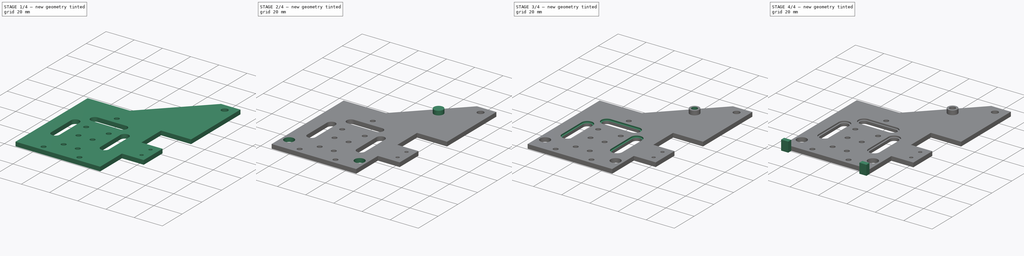
[diagram: build sequence overview — one tinted view per stage of 4, left to right]
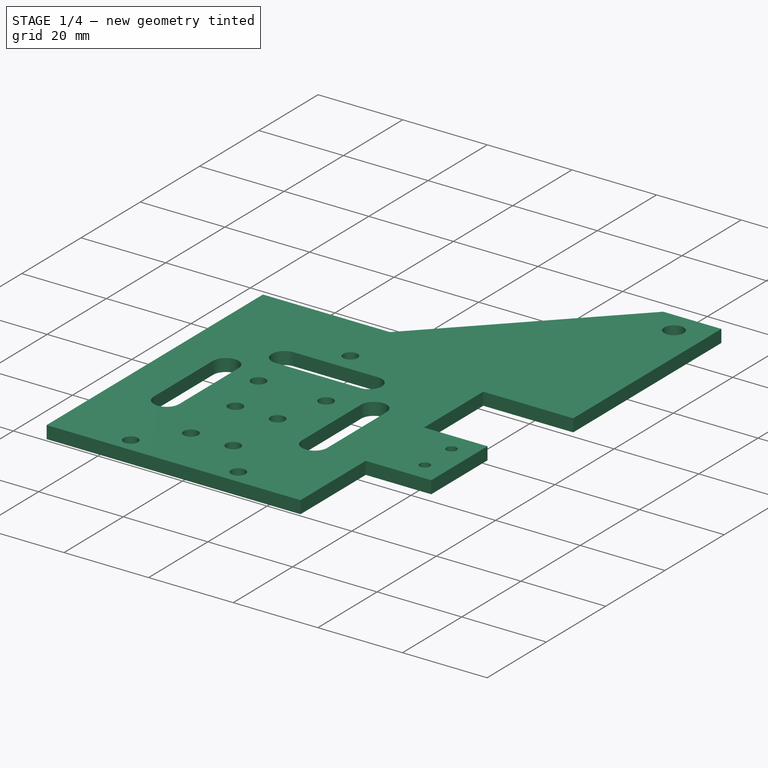
[diagram: stage 1 of 4 — iso view after this stage's code; geometry added in this stage tinted green]
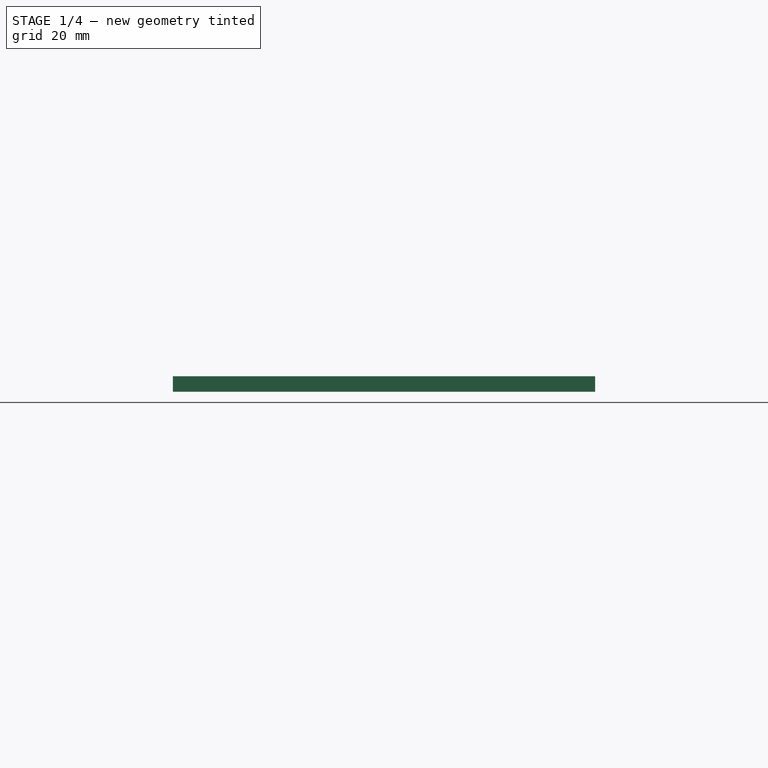
[diagram: stage 1 of 4 — front view after this stage's code; geometry added in this stage tinted green]
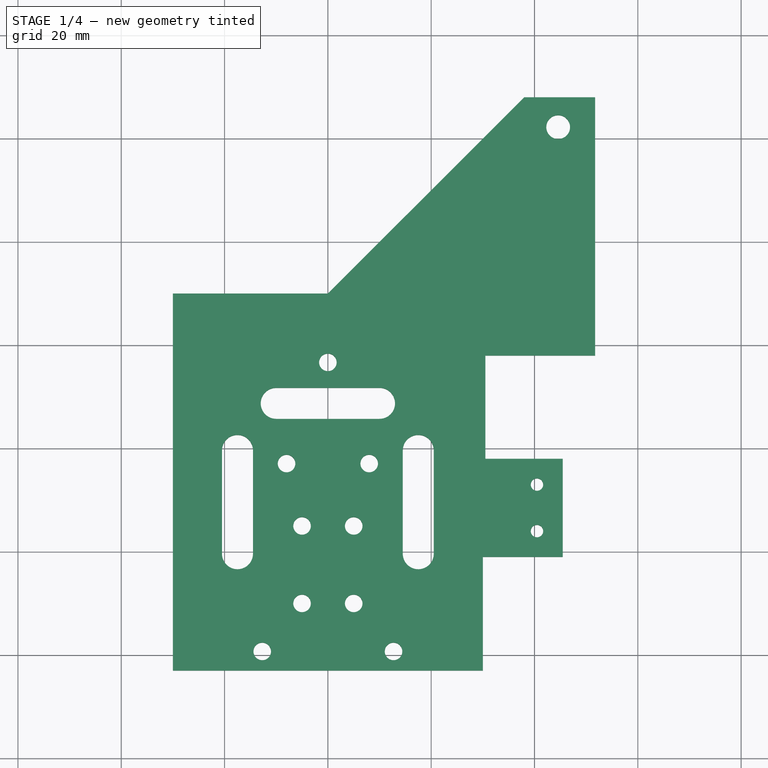
[diagram: stage 1 of 4 — top view after this stage's code; geometry added in this stage tinted green]
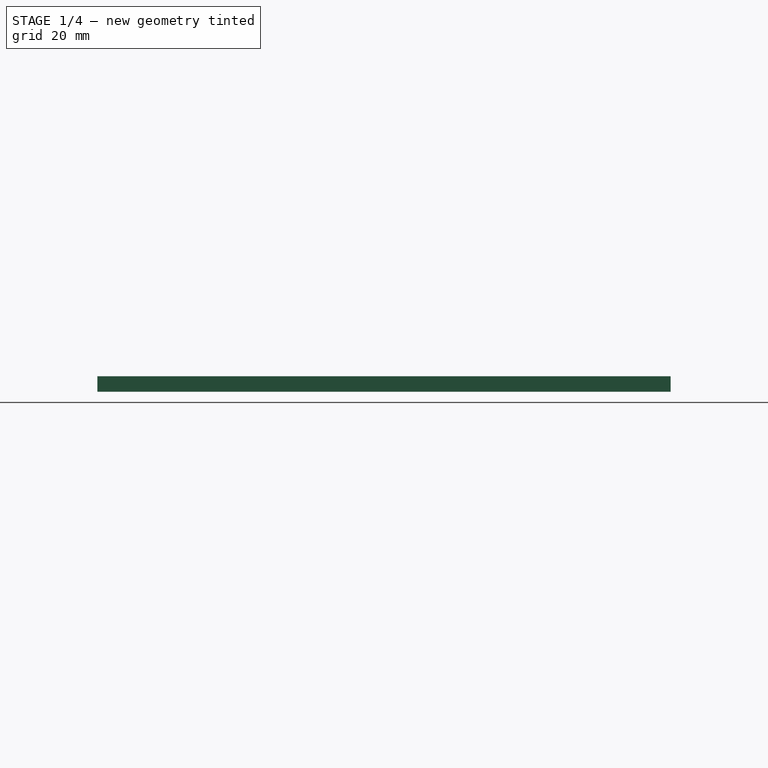
[diagram: stage 1 of 4 — right view after this stage's code; geometry added in this stage tinted green]
FCSTD DOCUMENT  (FreeCAD 0.18.4R)
Label: main_head_v1.01
License: All rights reserved
LicenseURL: http://en.wikipedia.org/wiki/All_rights_reserved
objects: Sketcher::SketchObject×10, PartDesign::Pocket×5, PartDesign::Pad×4, PartDesign::Body×1
note: 29 computed .brp shape members not serialized (recipe doc carries the construction recipe); baked Part::Feature solids carry a one-line shape summary decoded from their .brp

FEATURE [Sketcher::SketchObject] Sketch
  MapMode = 5
  Support = -> [XY_Plane]
  sketch-geometry (36):
    g0: LineSegment StartX=30 StartY=-63 StartZ=0 EndX=-30 EndY=-63 EndZ=0
    g1: LineSegment StartX=-30 StartY=-63 StartZ=0 EndX=-30 EndY=10 EndZ=0
    g2: LineSegment StartX=-30 StartY=10 StartZ=0 EndX=0 EndY=10 EndZ=0
    g3: LineSegment StartX=0 StartY=10 StartZ=0 EndX=38 EndY=48 EndZ=0
    g4: LineSegment StartX=38 StartY=48 StartZ=0 EndX=51.73 EndY=48 EndZ=0
    g5: LineSegment StartX=51.73 StartY=48 StartZ=0 EndX=51.73 EndY=-2 EndZ=0
    g6: LineSegment StartX=30.48 StartY=-2 StartZ=0 EndX=30.48 EndY=-22 EndZ=0
    g7: LineSegment StartX=30.48 StartY=-22 StartZ=0 EndX=45.48 EndY=-22 EndZ=0
    g8: LineSegment StartX=45.48 StartY=-22 StartZ=0 EndX=45.48 EndY=-41 EndZ=0
    g9: LineSegment StartX=45.48 StartY=-41 StartZ=0 EndX=30 EndY=-41 EndZ=0
    g10: LineSegment StartX=30 StartY=-41 StartZ=0 EndX=30 EndY=-63 EndZ=0
    g11: LineSegment StartX=30.48 StartY=-2 StartZ=0 EndX=51.73 EndY=-2 EndZ=0
    g12: Circle CenterX=44.585 CenterY=42.218 CenterZ=0 NormalX=0 NormalY=0 NormalZ=1 AngleXU=0 Radius=2.3
    g13: Circle CenterX=-12.71 CenterY=-59.3 CenterZ=0 NormalX=0 NormalY=0 NormalZ=1 AngleXU=0 Radius=1.7
    g14: Circle CenterX=12.71 CenterY=-59.3 CenterZ=0 NormalX=0 NormalY=0 NormalZ=1 AngleXU=0 Radius=1.7
    g15: ArcOfCircle CenterX=-17.5 CenterY=-40.386 CenterZ=0 NormalX=0 NormalY=0 NormalZ=1 AngleXU=0 Radius=3 StartAngle=3.14159 EndAngle=6.28319
    g16: ArcOfCircle CenterX=-17.5 CenterY=-20.386 CenterZ=0 NormalX=0 NormalY=0 NormalZ=1 AngleXU=0 Radius=3 StartAngle=5e-16 EndAngle=3.14159
    g17: LineSegment StartX=-14.5 StartY=-40.386 StartZ=0 EndX=-14.5 EndY=-20.386 EndZ=0
    g18: LineSegment StartX=-20.5 StartY=-40.386 StartZ=0 EndX=-20.5 EndY=-20.386 EndZ=0
    g19: ArcOfCircle CenterX=17.5 CenterY=-40.386 CenterZ=0 NormalX=0 NormalY=0 NormalZ=1 AngleXU=0 Radius=3 StartAngle=3.14159 EndAngle=6.28319
    g20: ArcOfCircle CenterX=17.5 CenterY=-20.386 CenterZ=0 NormalX=0 NormalY=0 NormalZ=1 AngleXU=0 Radius=3 StartAngle=6e-16 EndAngle=3.14159
    g21: LineSegment StartX=20.5 StartY=-40.386 StartZ=0 EndX=20.5 EndY=-20.386 EndZ=0
    g22: LineSegment StartX=14.5 StartY=-40.386 StartZ=0 EndX=14.5 EndY=-20.386 EndZ=0
    g23: ArcOfCircle CenterX=-10 CenterY=-11.2671 CenterZ=0 NormalX=0 NormalY=0 NormalZ=1 AngleXU=0 Radius=3 StartAngle=1.5708 EndAngle=4.71239
    g24: ArcOfCircle CenterX=10 CenterY=-11.2671 CenterZ=0 NormalX=0 NormalY=0 NormalZ=1 AngleXU=0 Radius=3 StartAngle=4.71239 EndAngle=7.85398
    g25: LineSegment StartX=-10 StartY=-14.2671 StartZ=0 EndX=10 EndY=-14.2671 EndZ=0
    g26: LineSegment StartX=-10 StartY=-8.26714 StartZ=0 EndX=10 EndY=-8.26714 EndZ=0
    g27: Circle CenterX=0 CenterY=-3.33121 CenterZ=0 NormalX=0 NormalY=0 NormalZ=1 AngleXU=0 Radius=1.7
    g28: Circle CenterX=-8 CenterY=-22.9179 CenterZ=0 NormalX=0 NormalY=0 NormalZ=1 AngleXU=0 Radius=1.7
    g29: Circle CenterX=8 CenterY=-22.9179 CenterZ=0 NormalX=0 NormalY=0 NormalZ=1 AngleXU=0 Radius=1.7
    g30: Circle CenterX=40.48 CenterY=-27 CenterZ=0 NormalX=0 NormalY=0 NormalZ=1 AngleXU=0 Radius=1.2
    g31: Circle CenterX=40.48 CenterY=-36 CenterZ=0 NormalX=0 NormalY=0 NormalZ=1 AngleXU=0 Radius=1.2
    g32: Circle CenterX=-5 CenterY=-35 CenterZ=0 NormalX=0 NormalY=0 NormalZ=1 AngleXU=0 Radius=1.7
    g33: Circle CenterX=5 CenterY=-35 CenterZ=0 NormalX=0 NormalY=0 NormalZ=1 AngleXU=0 Radius=1.7
    g34: Circle CenterX=-5 CenterY=-50 CenterZ=0 NormalX=0 NormalY=0 NormalZ=1 AngleXU=0 Radius=1.7
    g35: Circle CenterX=5 CenterY=-50 CenterZ=0 NormalX=0 NormalY=0 NormalZ=1 AngleXU=0 Radius=1.7
  constraints (90):
    c: Vertical(g1)
    c: DistanceY(g1,g1) = 73
    c: Distance(g0,g0) = 60
    c: Coincident(g2,g1)
    c: PointOnObject(g2,g-2)
    c: Horizontal(g2)
    c: Angle(g3,g2) = 2.35619
    c: Coincident(g3,g2)
    c: Coincident(g4,g3)
    c: Coincident(g5,g4)
    c: Vertical(g5)
    c: Vertical(g6)
    c: Horizontal(g7)
    c: Coincident(g8,g7)
    c: Vertical(g8)
    c: Coincident(g9,g8)
    c: Coincident(g10,g9)
    c: Coincident(g10,g0)
    c: Vertical(g10)
    c: Perpendicular(g10,g9)
    c: Perpendicular(g5,g4)
    c: Distance(g0,g9) = 22
    c: DistanceY(g8,g8) = 19
    c: DistanceY(g-1,g1) = 10
    c: DistanceY(g6,g6) = 20
    c: Coincident(g6,g7)
    c: Coincident(g0,g1)
    c: Symmetric(g0,g0,g-2)
    c: Coincident(g11,g6)
    c: Coincident(g11,g5)
    c: Parallel(g11,g-1)
    c: DistanceY(g5,g5) = 50
    c: Radius(g12) = 2.3
    c: Symmetric(g13,g14,g-2)
    c: Distance(g14,g13) = 25.42
    c: Radius(g13) = 1.7
    c: Radius(g14) = 1.7
    c: Tangent(g15,g18) = 1.5708
    c: Tangent(g15,g17) = -1.5708
    c: Tangent(g17,g16) = -1.5708
    c: Tangent(g18,g16) = 1.5708
    c: Vertical(g17)
    c: Equal(g15,g16)
    c: Tangent(g19,g22) = 1.5708
    c: Tangent(g19,g21) = -1.5708
    c: Tangent(g21,g20) = -1.5708
    c: Tangent(g22,g20) = 1.5708
    c: Vertical(g21)
    c: Equal(g19,g20)
    c: Tangent(g23,g26) = 1.5708
    c: Tangent(g23,g25) = -1.5708
    c: Tangent(g25,g24) = -1.5708
    c: Tangent(g26,g24) = 1.5708
    c: Horizontal(g25)
    c: Distance(g16,g15) = 20
    c: Distance(g20,g19) = 20
    c: Distance(g23,g24) = 20
    c: Distance(g16,g16) = 6
    c: Distance(g23,g23) = 6
    c: Distance(g20,g20) = 6
    c: Symmetric(g23,g24,g-2)
    c: Symmetric(g16,g20,g-2)
    c: PointOnObject(g27,g-2)
    c: Radius(g27) = 1.7
    c: Symmetric(g28,g29,g-2)
    c: Radius(g28) = 1.7
    c: Radius(g29) = 1.7
    c: Distance(g28,g29) = 16
    c: Distance(g30,g31) = 9
    c: Distance(g7) = 15
    c: DistanceX(g11,g11) = 21.25
    c: Distance(g30,g8) = 5
    c: Vertical(g31,g30)
    c: Radius(g30) = 1.2
    c: Radius(g31) = 1.2
    c: Distance(g30,g7) = 5
    c: DistanceX(g-2,g5) = 51.73
    c: Horizontal(g34,g35)
    c: Vertical(g32,g34)
    c: Vertical(g33,g35)
    c: Symmetric(g32,g33,g-2)
    c: Distance(g32,g33) = 10
    c: Distance(g34,g32) = 15
    c: Radius(g32) = 1.7
    c: Radius(g33) = 1.7
    c: Radius(g35) = 1.7
    c: Radius(g34) = 1.7
    c: Distance(g13,g0) = 3.7
    c: Distance(g34,g0) = 13
    c: Distance(g16,g20) = 35
FEATURE [PartDesign::Pad] Pad
  Length = 3
  Length2 = 100
  Profile = -> Sketch
  Type = 0
FEATURE [Sketcher::SketchObject] Sketch003
  MapMode = 5
  Placement = pos=(0,0,3) rot=(0,0,1;0rad)
  sketch-geometry (3):
    g0: Circle CenterX=-25 CenterY=-52.39 CenterZ=0 NormalX=0 NormalY=0 NormalZ=1 AngleXU=0 Radius=3.5
    g1: Circle CenterX=25 CenterY=-52.39 CenterZ=0 NormalX=0 NormalY=0 NormalZ=1 AngleXU=0 Radius=3.5
    g2: Circle CenterX=25 CenterY=27.61 CenterZ=0 NormalX=0 NormalY=0 NormalZ=1 AngleXU=0 Radius=2
  constraints (7):
    c: Radius(g1) = 3.5
    c: Radius(g0) = 3.5
    c: Distance(g0,g1) = 50
    c: Symmetric(g1,g0,g-2)
    c: Vertical(g2,g1)
    c: Distance(g2,g1) = 80
    c: Radius(g2) = 2
FEATURE [Sketcher::SketchObject] Sketch004
  MapMode = 5
  sketch-geometry (5):
    g0: Circle CenterX=-5 CenterY=-35 CenterZ=0 NormalX=0 NormalY=0 NormalZ=1 AngleXU=0 Radius=2.34501
    g1: Circle CenterX=-5 CenterY=-35 CenterZ=0 NormalX=0 NormalY=0 NormalZ=1 AngleXU=0 Radius=1.7
    g2: Circle CenterX=5 CenterY=-35 CenterZ=0 NormalX=0 NormalY=0 NormalZ=1 AngleXU=0 Radius=1.7
    g3: Circle CenterX=5 CenterY=-50 CenterZ=0 NormalX=0 NormalY=0 NormalZ=1 AngleXU=0 Radius=1.7
    g4: Circle CenterX=-5 CenterY=-50 CenterZ=0 NormalX=0 NormalY=0 NormalZ=1 AngleXU=0 Radius=1.7
  constraints (5):
    c: Coincident(g1,g0)
    c: Radius(g1) = 1.7
    c: Radius(g2) = 1.7
    c: Radius(g4) = 1.7
    c: Radius(g3) = 1.7
FEATURE [PartDesign::Pocket] Pocket004
  BaseFeature = -> Pad
  Length = 5
  Length2 = 100
  Profile = -> Sketch004
  Type = 0
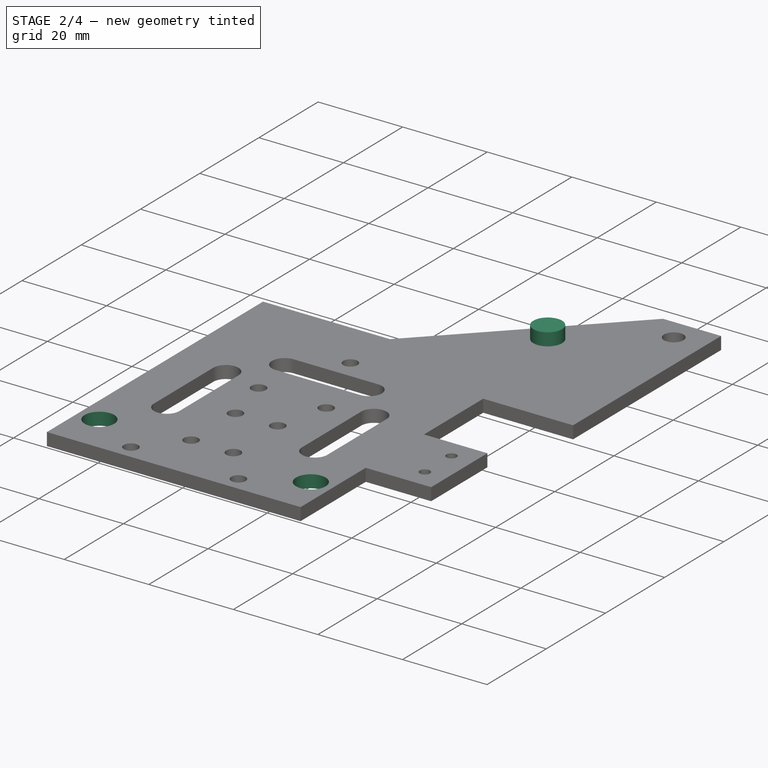
[diagram: stage 2 of 4 — iso view after this stage's code; geometry added in this stage tinted green]
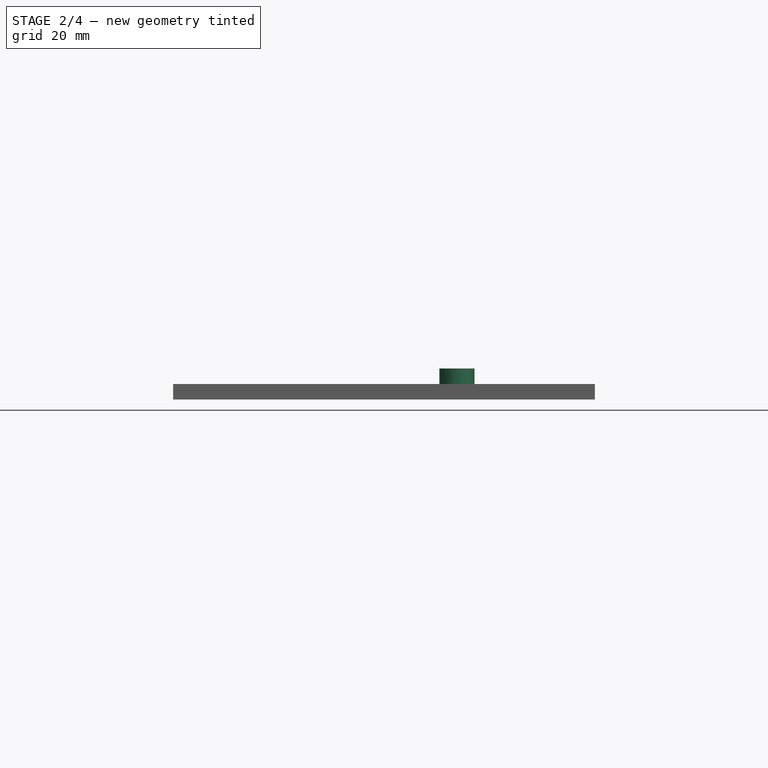
[diagram: stage 2 of 4 — front view after this stage's code; geometry added in this stage tinted green]
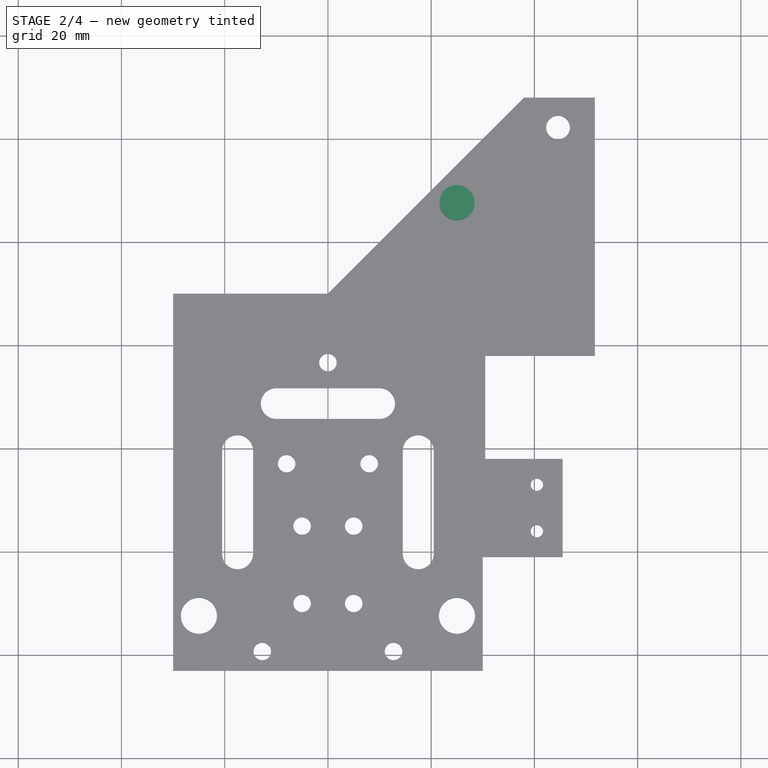
[diagram: stage 2 of 4 — top view after this stage's code; geometry added in this stage tinted green]
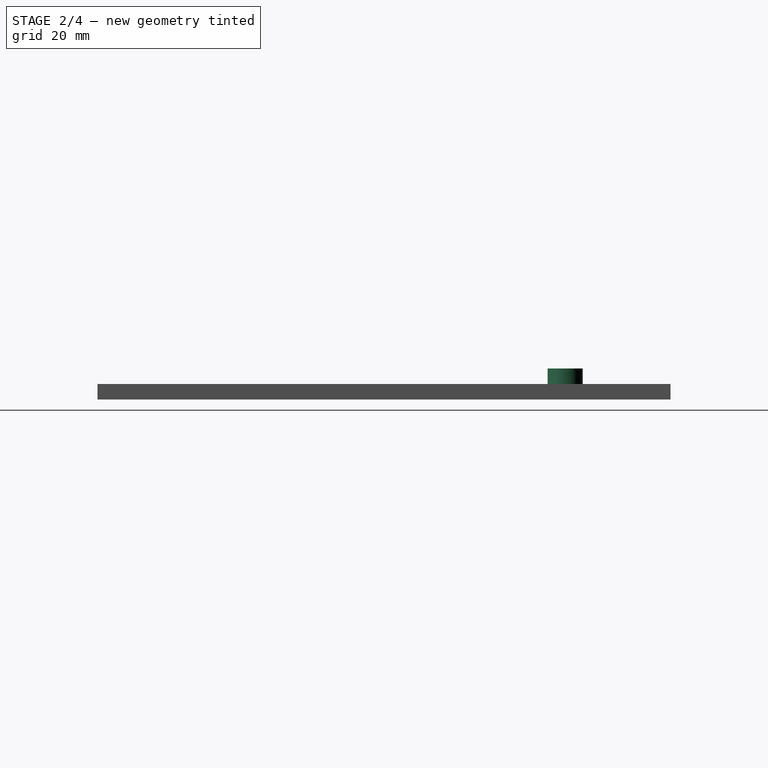
[diagram: stage 2 of 4 — right view after this stage's code; geometry added in this stage tinted green]
FEATURE [PartDesign::Pocket] Pocket005
  BaseFeature = -> Pocket004
  Length = 5
  Length2 = 100
  Profile = -> Sketch003
  Type = 0
FEATURE [Sketcher::SketchObject] Sketch005
  ExternalGeometry = -> [Pocket005]
  MapMode = 5
  Placement = pos=(0,0,3) rot=(0,0,1;0rad)
  Support = -> [Pocket005]
  sketch-geometry (1):
    g0: Circle CenterX=25 CenterY=27.61 CenterZ=0 NormalX=0 NormalY=0 NormalZ=1 AngleXU=0 Radius=3.4
  constraints (2):
    c: Radius(g0) = 3.4
    c: Coincident(g0,g-4)
FEATURE [PartDesign::Pad] Pad001
  BaseFeature = -> Pocket005
  Length = 3
  Length2 = 100
  Profile = -> Sketch005
  Type = 0
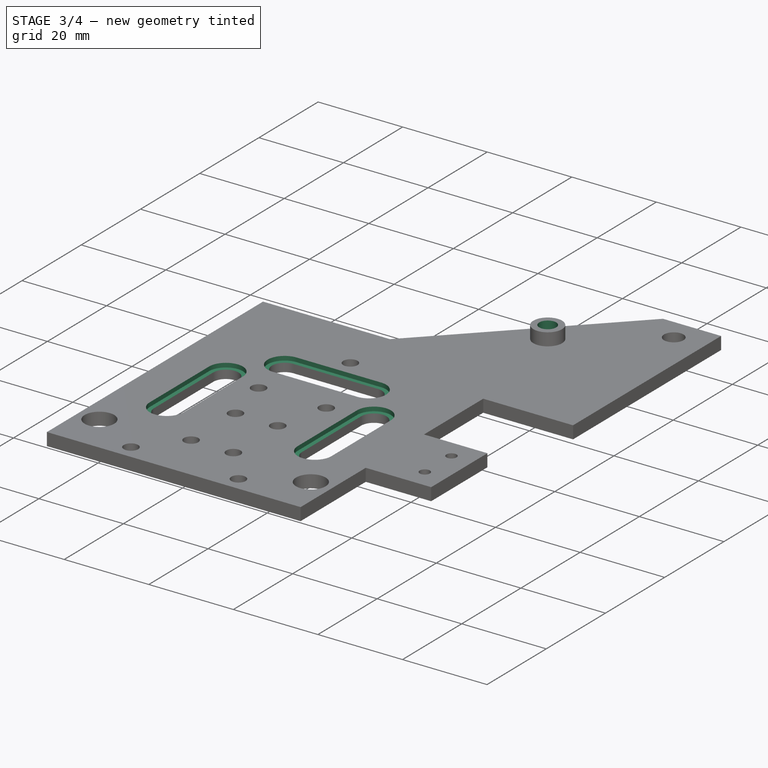
[diagram: stage 3 of 4 — iso view after this stage's code; geometry added in this stage tinted green]
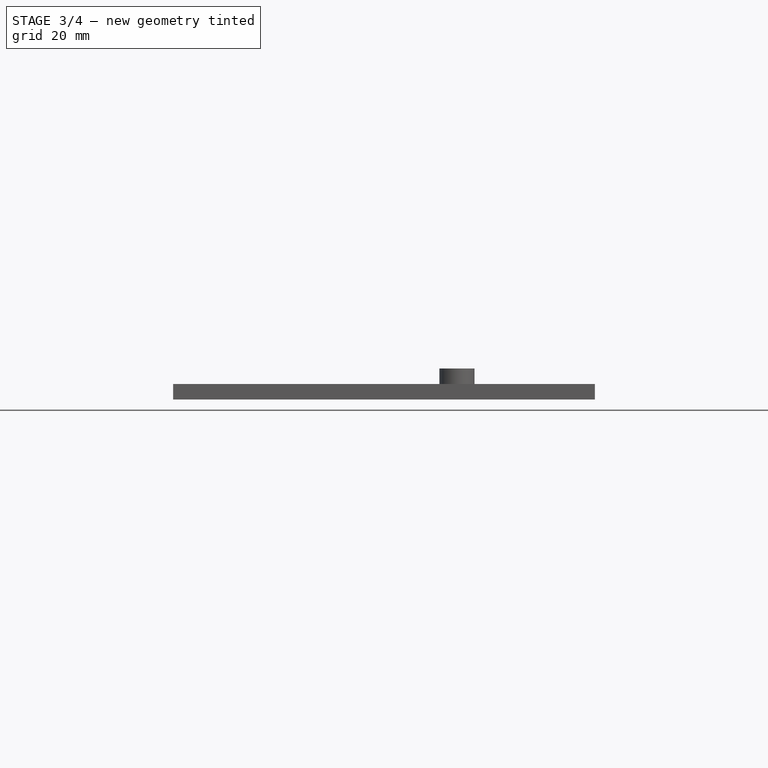
[diagram: stage 3 of 4 — front view after this stage's code; geometry added in this stage tinted green]
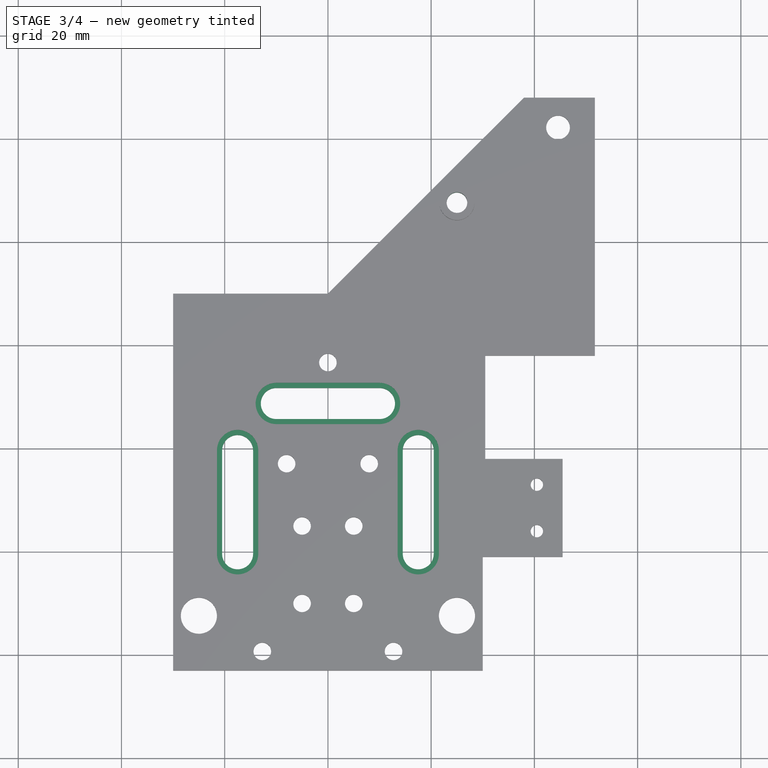
[diagram: stage 3 of 4 — top view after this stage's code; geometry added in this stage tinted green]
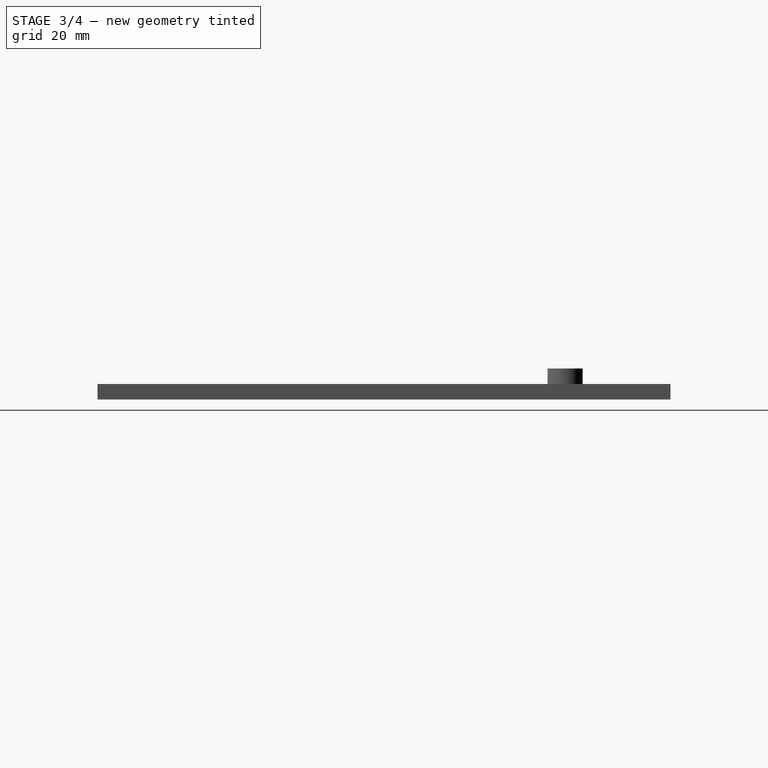
[diagram: stage 3 of 4 — right view after this stage's code; geometry added in this stage tinted green]
FEATURE [Sketcher::SketchObject] Sketch006
  ExternalGeometry = -> [Pad001]
  MapMode = 5
  Placement = pos=(0,0,6) rot=(0,0,1;0rad)
  Support = -> [Pad001]
  sketch-geometry (1):
    g0: Circle CenterX=25 CenterY=27.61 CenterZ=0 NormalX=0 NormalY=0 NormalZ=1 AngleXU=0 Radius=2
  constraints (2):
    c: Coincident(g0,g-3)
    c: Radius(g0) = 2
FEATURE [PartDesign::Pocket] Pocket
  BaseFeature = -> Pad001
  Length = 8
  Length2 = 100
  Profile = -> Sketch006
  Type = 0
FEATURE [Sketcher::SketchObject] Sketch009
  MapMode = 5
  Placement = pos=(0,0,4.5) rot=(0,0,1;0rad)
  sketch-geometry (1):
    g0: Circle CenterX=25 CenterY=27.61 CenterZ=0 NormalX=0 NormalY=0 NormalZ=1 AngleXU=0 Radius=2
FEATURE [PartDesign::Pocket] Pocket007
  BaseFeature = -> Pocket
  Length = 3
  Length2 = 100
  Profile = -> Sketch009
  Type = 0
FEATURE [Sketcher::SketchObject] Sketch010
  ExternalGeometry = -> [Pocket007]
  MapMode = 5
  Placement = pos=(0,0,3) rot=(0,0,1;0rad)
  Support = -> [Pocket007]
  sketch-geometry (12):
    g0: ArcOfCircle CenterX=-17.5 CenterY=-20.386 CenterZ=0 NormalX=0 NormalY=0 NormalZ=1 AngleXU=0 Radius=4 StartAngle=1e-16 EndAngle=3.14159
    g1: ArcOfCircle CenterX=-17.5 CenterY=-40.386 CenterZ=0 NormalX=0 NormalY=0 NormalZ=1 AngleXU=0 Radius=4 StartAngle=3.14159 EndAngle=6.28319
    g2: LineSegment StartX=-21.5 StartY=-20.386 StartZ=0 EndX=-21.5 EndY=-40.386 EndZ=0
    g3: LineSegment StartX=-13.5 StartY=-20.386 StartZ=0 EndX=-13.5 EndY=-40.386 EndZ=0
    g4: ArcOfCircle CenterX=-10 CenterY=-11.2671 CenterZ=0 NormalX=0 NormalY=0 NormalZ=1 AngleXU=0 Radius=4 StartAngle=1.5708 EndAngle=4.71239
    g5: ArcOfCircle CenterX=10 CenterY=-11.2671 CenterZ=0 NormalX=0 NormalY=0 NormalZ=1 AngleXU=0 Radius=4 StartAngle=4.71239 EndAngle=7.85398
    g6: LineSegment StartX=-10 StartY=-15.2671 StartZ=0 EndX=10 EndY=-15.2671 EndZ=0
    g7: LineSegment StartX=-10 StartY=-7.26714 StartZ=0 EndX=10 EndY=-7.26714 EndZ=0
    g8: ArcOfCircle CenterX=17.5 CenterY=-20.386 CenterZ=0 NormalX=0 NormalY=0 NormalZ=1 AngleXU=0 Radius=4 StartAngle=3e-16 EndAngle=3.14159
    g9: ArcOfCircle CenterX=17.5 CenterY=-40.386 CenterZ=0 NormalX=0 NormalY=0 NormalZ=1 AngleXU=0 Radius=4 StartAngle=3.14159 EndAngle=6.28319
    g10: LineSegment StartX=13.5 StartY=-20.386 StartZ=0 EndX=13.5 EndY=-40.386 EndZ=0
    g11: LineSegment StartX=21.5 StartY=-20.386 StartZ=0 EndX=21.5 EndY=-40.386 EndZ=0
FEATURE [PartDesign::Pocket] Pocket008
  BaseFeature = -> Pocket007
  Length = 1
  Length2 = 100
  Profile = -> Sketch010
  Type = 0
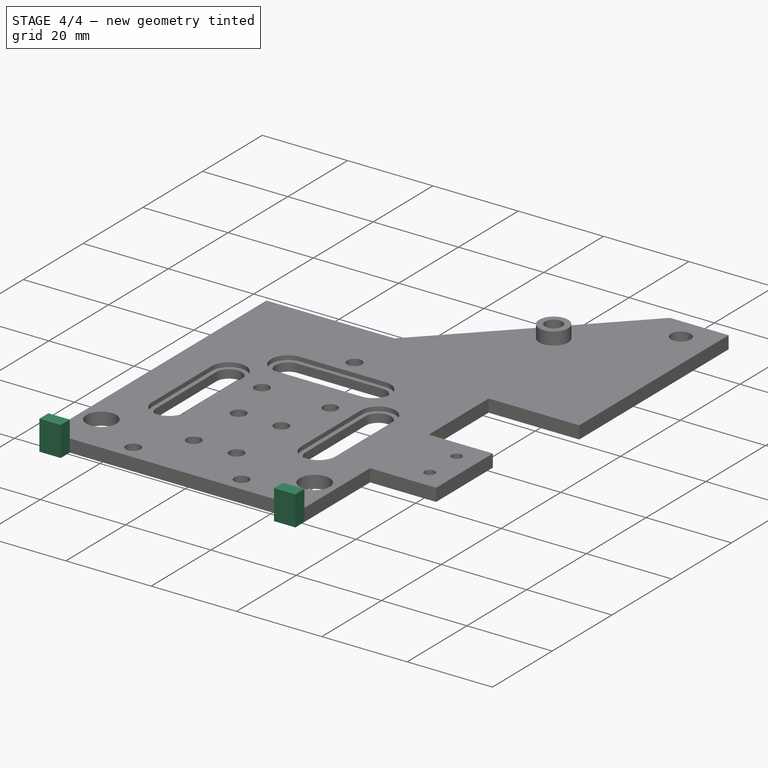
[diagram: stage 4 of 4 — iso view after this stage's code; geometry added in this stage tinted green]
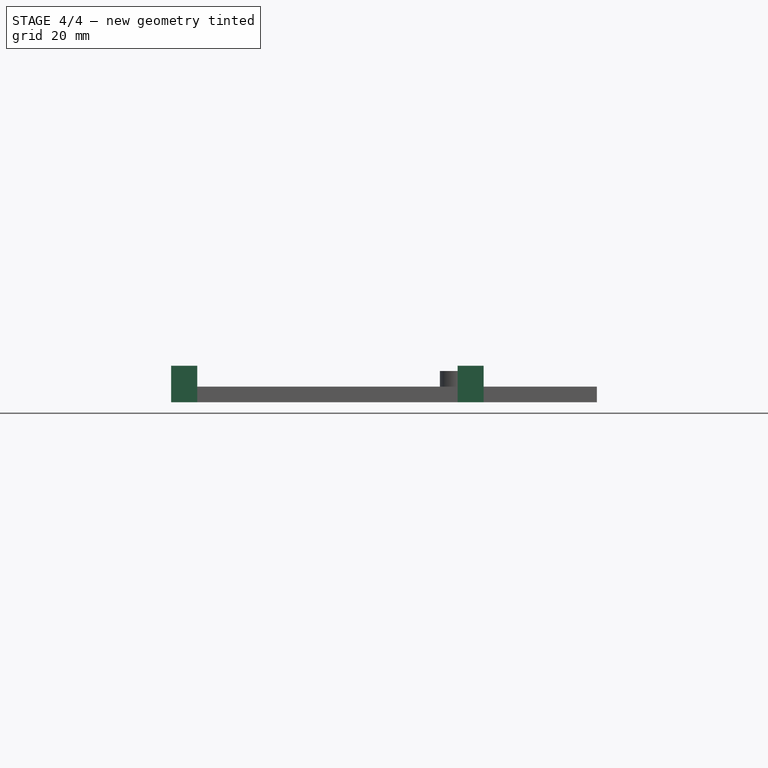
[diagram: stage 4 of 4 — front view after this stage's code; geometry added in this stage tinted green]
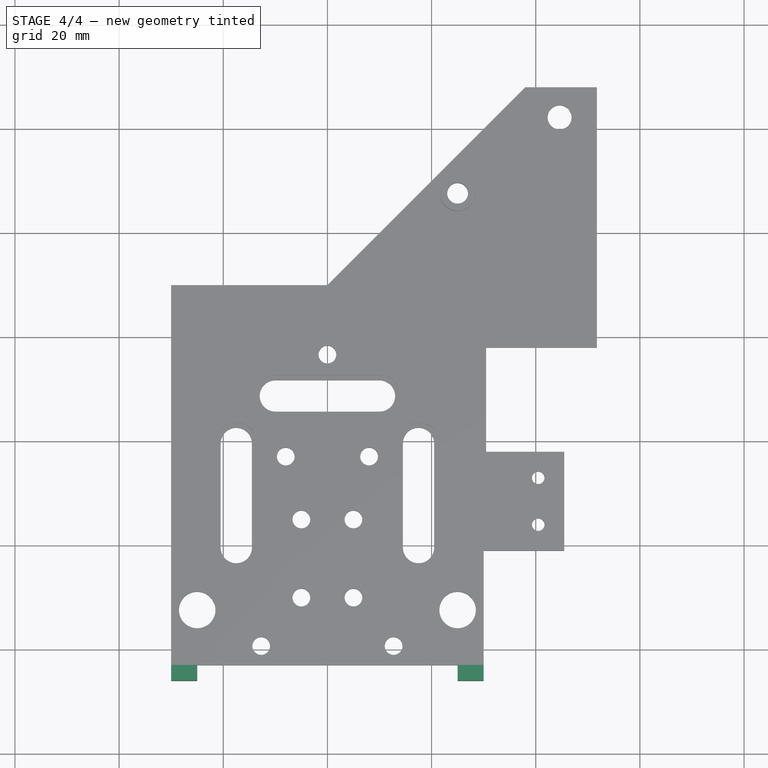
[diagram: stage 4 of 4 — top view after this stage's code; geometry added in this stage tinted green]
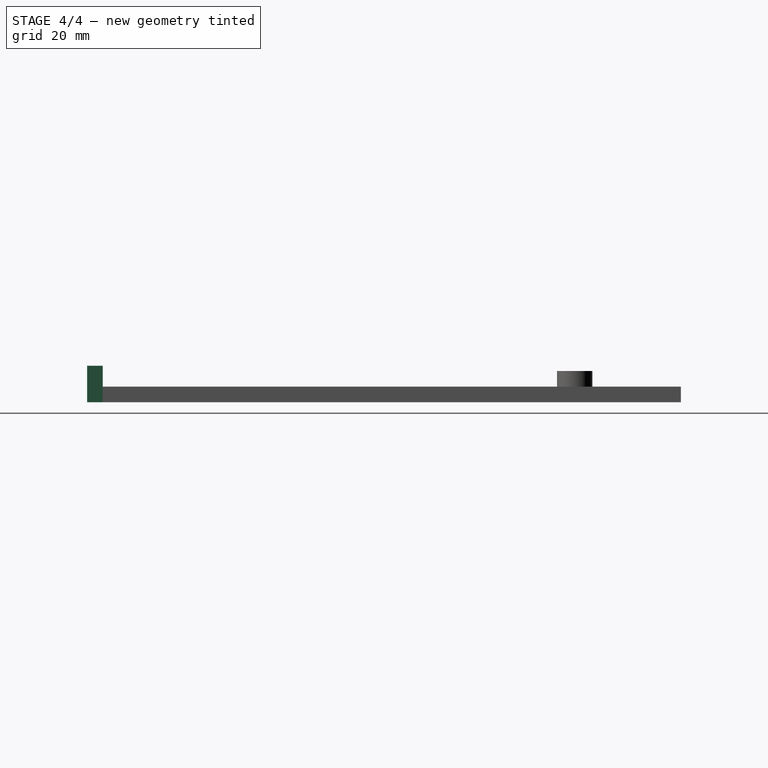
[diagram: stage 4 of 4 — right view after this stage's code; geometry added in this stage tinted green]
FEATURE [Sketcher::SketchObject] Sketch011
  ExternalGeometry = -> [Pocket008]
  MapMode = 5
  Placement = pos=(0,-63,0) rot=(1,0,0;1.5708rad)
  Support = -> [Pocket008]
  sketch-geometry (8):
    g0: LineSegment StartX=-30 StartY=0 StartZ=0 EndX=-25 EndY=0 EndZ=0
    g1: LineSegment StartX=-25 StartY=0 StartZ=0 EndX=-25 EndY=3 EndZ=0
    g2: LineSegment StartX=-25 StartY=3 StartZ=0 EndX=-30 EndY=3 EndZ=0
    g3: LineSegment StartX=-30 StartY=3 StartZ=0 EndX=-30 EndY=0 EndZ=0
    g4: LineSegment StartX=30 StartY=0 StartZ=0 EndX=25 EndY=0 EndZ=0
    g5: LineSegment StartX=25 StartY=0 StartZ=0 EndX=25 EndY=3 EndZ=0
    g6: LineSegment StartX=25 StartY=3 StartZ=0 EndX=30 EndY=3 EndZ=0
    g7: LineSegment StartX=30 StartY=3 StartZ=0 EndX=30 EndY=0 EndZ=0
  constraints (22):
    c: Coincident(g0,g1)
    c: Coincident(g1,g2)
    c: Coincident(g2,g3)
    c: Coincident(g3,g0)
    c: Horizontal(g0)
    c: Horizontal(g2)
    c: Vertical(g1)
    c: Vertical(g3)
    c: Coincident(g0,g-4)
    c: PointOnObject(g1,g-5)
    c: Coincident(g4,g5)
    c: Coincident(g5,g6)
    c: Coincident(g6,g7)
    c: Coincident(g7,g4)
    c: Horizontal(g4)
    c: Horizontal(g6)
    c: Vertical(g5)
    c: Vertical(g7)
    c: Coincident(g4,g-3)
    c: PointOnObject(g5,g-5)
    c: DistanceX(g6,g6) = 5
    c: DistanceX(g0,g0) = 5
FEATURE [PartDesign::Pad] Pad003
  BaseFeature = -> Pocket008
  Length = 3
  Length2 = 100
  Profile = -> Sketch011
  Type = 0
FEATURE [Sketcher::SketchObject] Sketch012
  ExternalGeometry = -> [Pad003]
  MapMode = 5
  Placement = pos=(0,7e-16,3) rot=(0,0,1;0rad)
  Support = -> [Pad003]
  sketch-geometry (8):
    g0: LineSegment StartX=-30 StartY=-66 StartZ=0 EndX=-25 EndY=-66 EndZ=0
    g1: LineSegment StartX=-25 StartY=-66 StartZ=0 EndX=-25 EndY=-63 EndZ=0
    g2: LineSegment StartX=-25 StartY=-63 StartZ=0 EndX=-30 EndY=-63 EndZ=0
    g3: LineSegment StartX=-30 StartY=-63 StartZ=0 EndX=-30 EndY=-66 EndZ=0
    g4: LineSegment StartX=25 StartY=-66 StartZ=0 EndX=30 EndY=-66 EndZ=0
    g5: LineSegment StartX=30 StartY=-66 StartZ=0 EndX=30 EndY=-63 EndZ=0
    g6: LineSegment StartX=30 StartY=-63 StartZ=0 EndX=25 EndY=-63 EndZ=0
    g7: LineSegment StartX=25 StartY=-63 StartZ=0 EndX=25 EndY=-66 EndZ=0
  constraints (20):
    c: Coincident(g0,g1)
    c: Coincident(g1,g2)
    c: Coincident(g2,g3)
    c: Coincident(g3,g0)
    c: Horizontal(g0)
    c: Horizontal(g2)
    c: Vertical(g1)
    c: Vertical(g3)
    c: Coincident(g0,g-3)
    c: Coincident(g1,g-4)
    c: Coincident(g4,g5)
    c: Coincident(g5,g6)
    c: Coincident(g6,g7)
    c: Coincident(g7,g4)
    c: Horizontal(g4)
    c: Horizontal(g6)
    c: Vertical(g5)
    c: Vertical(g7)
    c: Coincident(g4,g-6)
    c: Coincident(g5,g-5)
FEATURE [PartDesign::Pad] Pad004
  BaseFeature = -> Pad003
  Length = 4
  Length2 = 100
  Profile = -> Sketch012
  Type = 0
FEATURE [Sketcher::SketchObject] Sketch013
  ExternalGeometry = -> [Pad004]
  MapMode = 5
  Placement = pos=(0,0,3) rot=(0,0,1;0rad)
  Support = -> [Pad004]
  constraints (2):
    c: Distance(g-3,g-7) = 10.61
    c: DistanceY(g-1,g-6) = 27.61
FEATURE [PartDesign::Body] Body
  Group = -> [Sketch,Pad,Sketch003,Sketch004,Pocket004,Pocket005,Sketch005,Pad001,Sketch006,Pocket,Sketch009,Pocket007,Sketch010,Pocket008,Sketch011,Pad003,Sketch012,Pad004,Sketch013]
  Origin = -> Origin
  Tip = -> Pad004
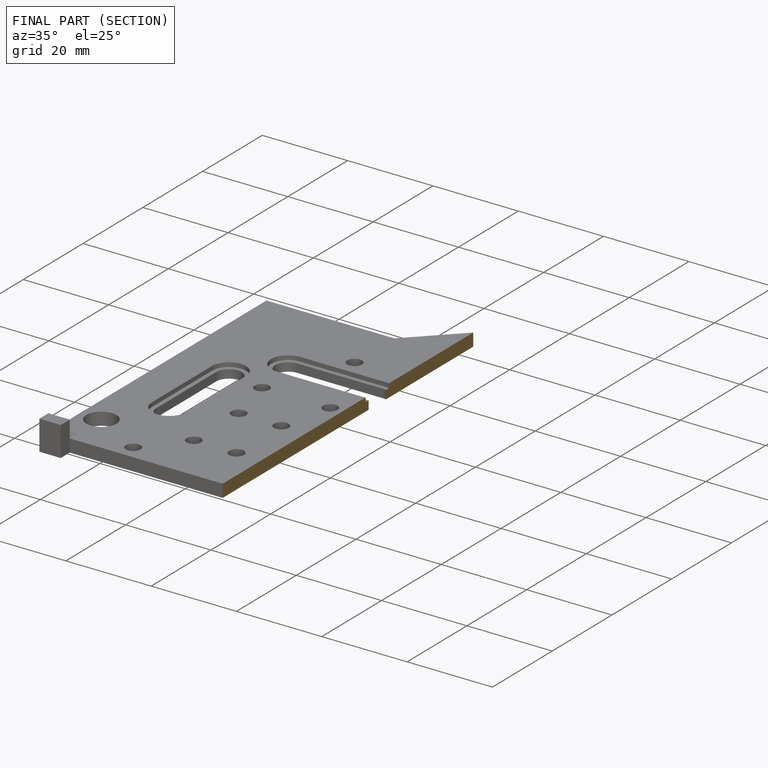
[diagram: finished part — half-section view (interior)]
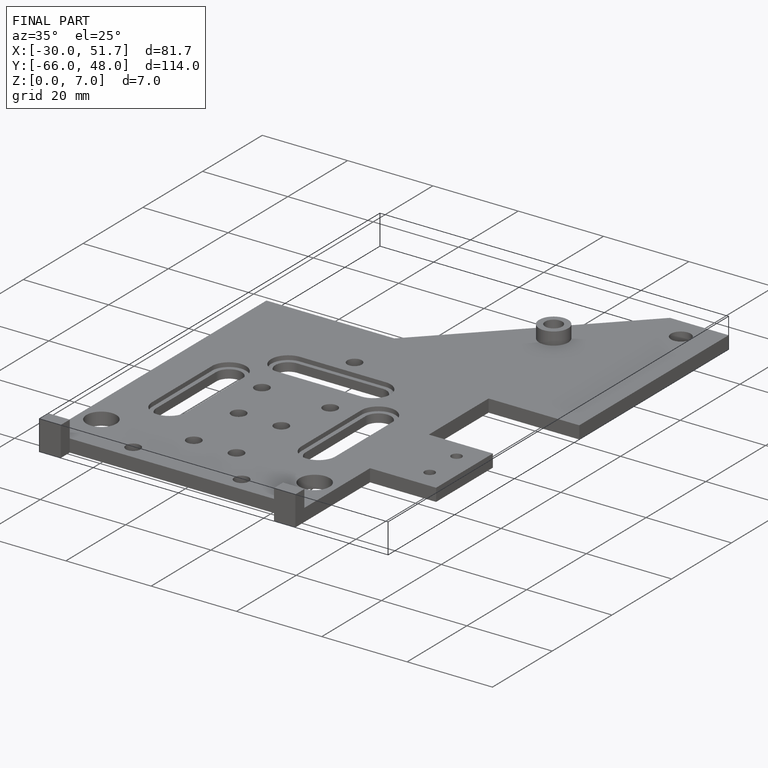
[diagram: finished part — iso view with bounding-box wireframe]
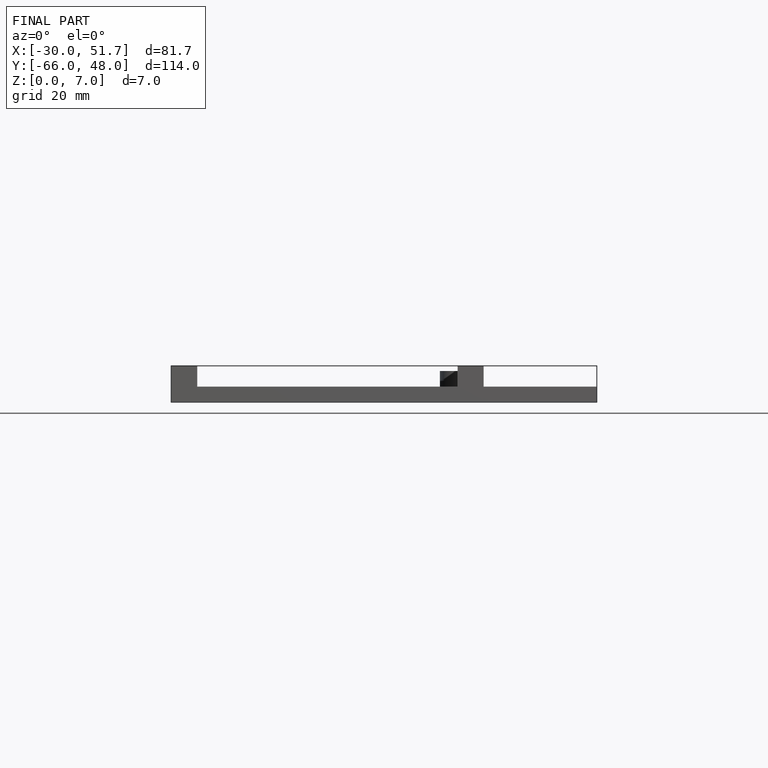
[diagram: finished part — front view with bounding-box wireframe]
